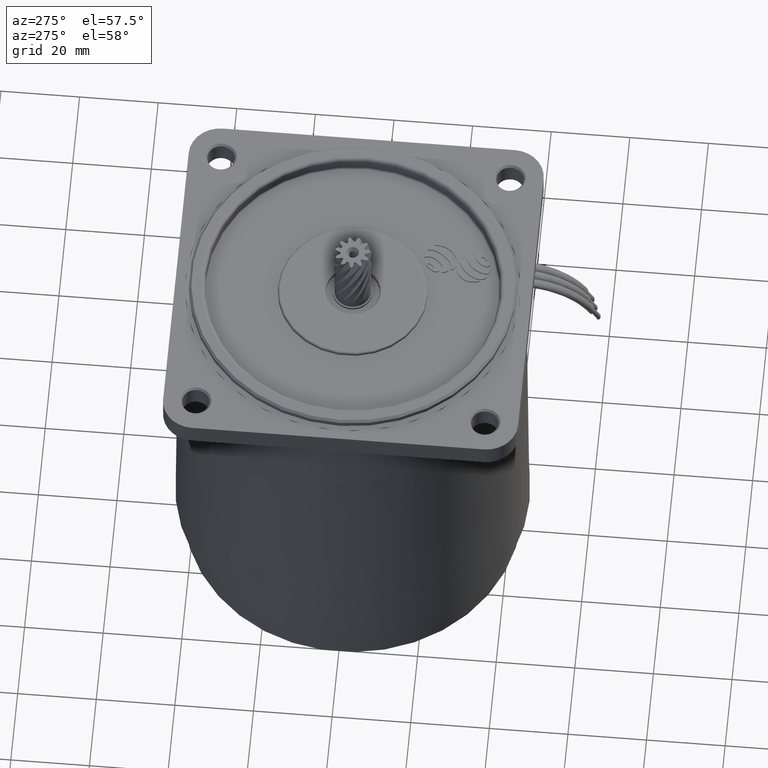
[diagram: clean part render]
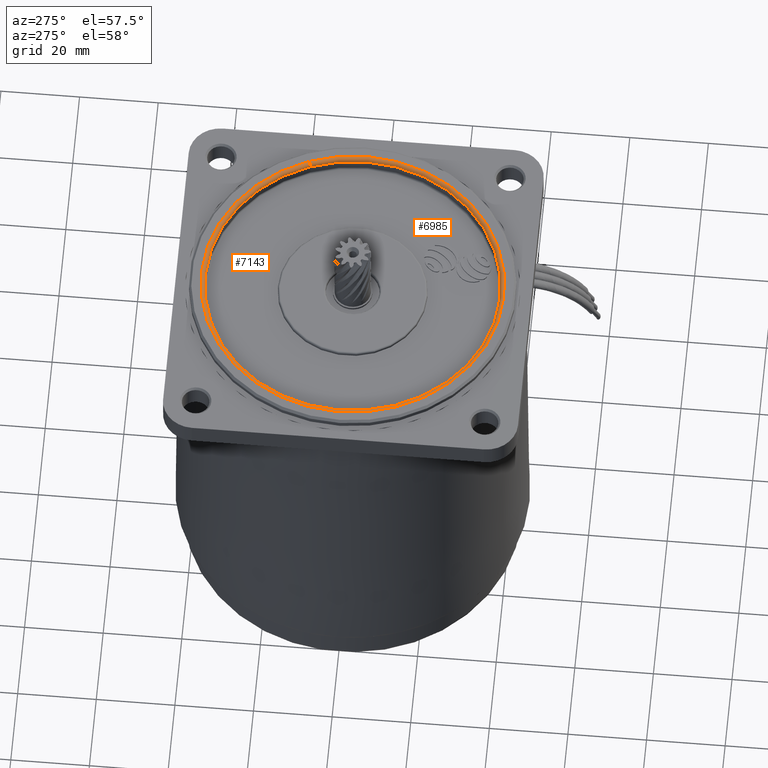
[diagram: same view with one multi-face feature highlighted, each face labeled with its STEP entity id]
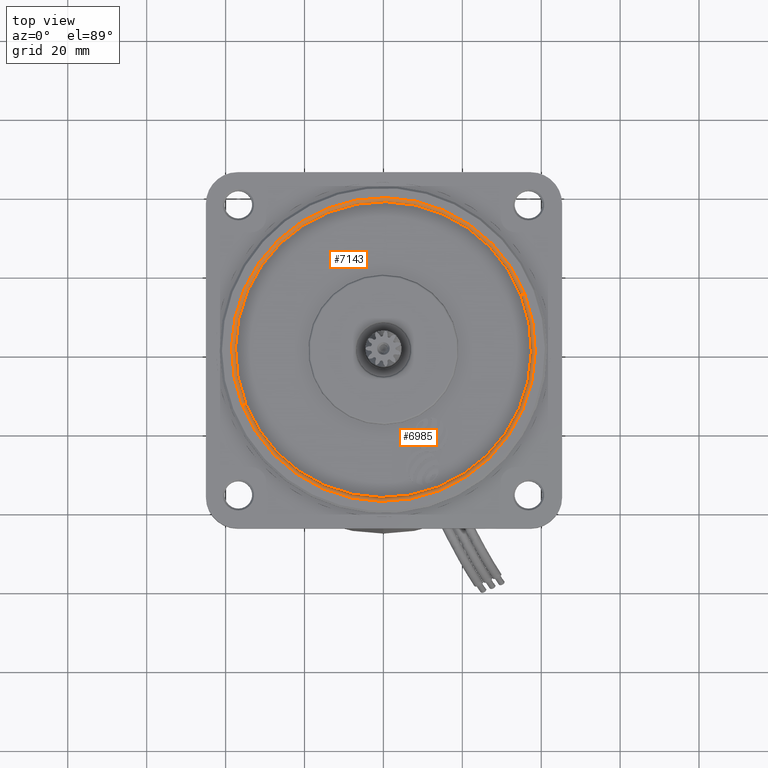
[diagram: same view with one multi-face feature highlighted, each face labeled with its STEP entity id]
A machine part, auxiliary view. The highlighted faces form ONE feature: a constant-radius fillet chain: 2 tangent blend faces with common blend radius 1 mm. The faces share edges in the B-rep.
A second angle (top view) of the same feature is appended — it is thin or edge-on in the first view.
Their STEP definitions:
[1] entity #7143 (Torus):
#2369 = CARTESIAN_POINT ( 'NONE',  ( 38.50000000000000000, 0.0000000000000000000, -24.50000000000000000 ) ) ;
#2383 = CARTESIAN_POINT ( 'NONE',  ( -38.50000000000000000, 4.714890176717309500E-015, -23.50000000000000000 ) ) ;
#2384 = CARTESIAN_POINT ( 'NONE',  ( -38.50000000000000000, 4.714890176717308700E-015, -24.50000000000000000 ) ) ;
#2387 = CIRCLE ( 'NONE', #2430, 1.000000000000000900 ) ;
#2400 = CARTESIAN_POINT ( 'NONE',  ( 0.0000000000000000000, 0.0000000000000000000, -23.50000000000000000 ) ) ;
#2403 = DIRECTION ( 'NONE',  ( 0.0000000000000000000, 0.0000000000000000000, -1.000000000000000000 ) ) ;
#2410 = DIRECTION ( 'NONE',  ( 0.0000000000000000000, 0.0000000000000000000, -1.000000000000000000 ) ) ;
#2411 = DIRECTION ( 'NONE',  ( 0.0000000000000000000, -1.000000000000000000, 0.0000000000000000000 ) ) ;
#2412 = AXIS2_PLACEMENT_3D ( 'NONE', #2417, #2411, #2410 ) ;
#2413 = AXIS2_PLACEMENT_3D ( 'NONE', #2400, #2403, #2464 ) ;
#2414 = CIRCLE ( 'NONE', #2413, 37.50000000000000000 ) ;
#2417 = CARTESIAN_POINT ( 'NONE',  ( 38.50000000000000000, 0.0000000000000000000, -23.50000000000000000 ) ) ;
#2420 = CIRCLE ( 'NONE', #2412, 1.000000000000000900 ) ;
#2428 = DIRECTION ( 'NONE',  ( -1.000000000000000000, 1.224646799147349500E-016, 0.0000000000000000000 ) ) ;
#2429 = DIRECTION ( 'NONE',  ( 1.224646799147353200E-016, 1.000000000000000000, 0.0000000000000000000 ) ) ;
#2430 = AXIS2_PLACEMENT_3D ( 'NONE', #2383, #2429, #2428 ) ;
#2464 = DIRECTION ( 'NONE',  ( 1.000000000000000000, 0.0000000000000000000, 0.0000000000000000000 ) ) ;
#2484 = CARTESIAN_POINT ( 'NONE',  ( 37.50000000000000000, 0.0000000000000000000, -23.50000000000000000 ) ) ;
#2495 = CIRCLE ( 'NONE', #2517, 38.50000000000000000 ) ;
#2496 = DIRECTION ( 'NONE',  ( 1.000000000000000000, 0.0000000000000000000, 0.0000000000000000000 ) ) ;
#2497 = DIRECTION ( 'NONE',  ( -0.0000000000000000000, -0.0000000000000000000, 1.000000000000000000 ) ) ;
#2502 = CARTESIAN_POINT ( 'NONE',  ( 0.0000000000000000000, 0.0000000000000000000, -23.50000000000000000 ) ) ;
#2503 = FACE_OUTER_BOUND ( 'NONE', #7030, .T. ) ;
#2517 = AXIS2_PLACEMENT_3D ( 'NONE', #2565, #2564, #2563 ) ;
#2518 = AXIS2_PLACEMENT_3D ( 'NONE', #2502, #2497, #2496 ) ;
#2521 = TOROIDAL_SURFACE ( 'NONE', #2518, 38.50000000000000000, 1.000000000000000000 ) ;
#2535 = CARTESIAN_POINT ( 'NONE',  ( -37.50000000000000000, 4.592425496802574400E-015, -23.50000000000000000 ) ) ;
#2563 = DIRECTION ( 'NONE',  ( 1.000000000000000000, 0.0000000000000000000, 0.0000000000000000000 ) ) ;
#2564 = DIRECTION ( 'NONE',  ( -0.0000000000000000000, -0.0000000000000000000, 1.000000000000000000 ) ) ;
#2565 = CARTESIAN_POINT ( 'NONE',  ( 0.0000000000000000000, 0.0000000000000000000, -24.50000000000000000 ) ) ;
#6953 = ORIENTED_EDGE ( 'NONE', *, *, #7015, .T. ) ;
#6960 = VERTEX_POINT ( 'NONE', #2369 ) ;
#7013 = ORIENTED_EDGE ( 'NONE', *, *, #7050, .F. ) ;
#7015 = EDGE_CURVE ( 'NONE', #7181, #7016, #2387, .T. ) ;
#7016 = VERTEX_POINT ( 'NONE', #2384 ) ;
#7020 = ORIENTED_EDGE ( 'NONE', *, *, #7145, .F. ) ;
#7030 = EDGE_LOOP ( 'NONE', ( #7013, #6953, #7020, #7133 ) ) ;
#7036 = EDGE_CURVE ( 'NONE', #7129, #6960, #2420, .T. ) ;
#7050 = EDGE_CURVE ( 'NONE', #7181, #7129, #2414, .T. ) ;
#7129 = VERTEX_POINT ( 'NONE', #2484 ) ;
#7133 = ORIENTED_EDGE ( 'NONE', *, *, #7036, .F. ) ;
#7143 = ADVANCED_FACE ( 'NONE', ( #2503 ), #2521, .T. ) ;
#7145 = EDGE_CURVE ( 'NONE', #6960, #7016, #2495, .T. ) ;
#7181 = VERTEX_POINT ( 'NONE', #2535 ) ;
[2] entity #6985 (Torus):
#1050 = DIRECTION ( 'NONE',  ( 0.0000000000000000000, 0.0000000000000000000, -1.000000000000000000 ) ) ;
#1051 = AXIS2_PLACEMENT_3D ( 'NONE', #1100, #1050, #1091 ) ;
#1091 = DIRECTION ( 'NONE',  ( 1.000000000000000000, 0.0000000000000000000, 0.0000000000000000000 ) ) ;
#1100 = CARTESIAN_POINT ( 'NONE',  ( 0.0000000000000000000, 0.0000000000000000000, -23.50000000000000000 ) ) ;
#1101 = CIRCLE ( 'NONE', #1051, 37.50000000000000000 ) ;
#2136 = CARTESIAN_POINT ( 'NONE',  ( 0.0000000000000000000, 0.0000000000000000000, -24.50000000000000000 ) ) ;
#2151 = CIRCLE ( 'NONE', #2177, 38.50000000000000000 ) ;
#2173 = DIRECTION ( 'NONE',  ( 1.000000000000000000, 0.0000000000000000000, 0.0000000000000000000 ) ) ;
#2174 = DIRECTION ( 'NONE',  ( -0.0000000000000000000, -0.0000000000000000000, 1.000000000000000000 ) ) ;
#2177 = AXIS2_PLACEMENT_3D ( 'NONE', #2136, #2174, #2173 ) ;
#2341 = AXIS2_PLACEMENT_3D ( 'NONE', #2351, #2354, #2393 ) ;
#2351 = CARTESIAN_POINT ( 'NONE',  ( 0.0000000000000000000, 0.0000000000000000000, -23.50000000000000000 ) ) ;
#2354 = DIRECTION ( 'NONE',  ( -0.0000000000000000000, -0.0000000000000000000, 1.000000000000000000 ) ) ;
#2363 = TOROIDAL_SURFACE ( 'NONE', #2341, 38.50000000000000000, 1.000000000000000000 ) ;
#2369 = CARTESIAN_POINT ( 'NONE',  ( 38.50000000000000000, 0.0000000000000000000, -24.50000000000000000 ) ) ;
#2383 = CARTESIAN_POINT ( 'NONE',  ( -38.50000000000000000, 4.714890176717309500E-015, -23.50000000000000000 ) ) ;
#2384 = CARTESIAN_POINT ( 'NONE',  ( -38.50000000000000000, 4.714890176717308700E-015, -24.50000000000000000 ) ) ;
#2387 = CIRCLE ( 'NONE', #2430, 1.000000000000000900 ) ;
#2393 = DIRECTION ( 'NONE',  ( 1.000000000000000000, 0.0000000000000000000, 0.0000000000000000000 ) ) ;
#2398 = FACE_OUTER_BOUND ( 'NONE', #6974, .T. ) ;
#2410 = DIRECTION ( 'NONE',  ( 0.0000000000000000000, 0.0000000000000000000, -1.000000000000000000 ) ) ;
#2411 = DIRECTION ( 'NONE',  ( 0.0000000000000000000, -1.000000000000000000, 0.0000000000000000000 ) ) ;
#2412 = AXIS2_PLACEMENT_3D ( 'NONE', #2417, #2411, #2410 ) ;
#2417 = CARTESIAN_POINT ( 'NONE',  ( 38.50000000000000000, 0.0000000000000000000, -23.50000000000000000 ) ) ;
#2420 = CIRCLE ( 'NONE', #2412, 1.000000000000000900 ) ;
#2428 = DIRECTION ( 'NONE',  ( -1.000000000000000000, 1.224646799147349500E-016, 0.0000000000000000000 ) ) ;
#2429 = DIRECTION ( 'NONE',  ( 1.224646799147353200E-016, 1.000000000000000000, 0.0000000000000000000 ) ) ;
#2430 = AXIS2_PLACEMENT_3D ( 'NONE', #2383, #2429, #2428 ) ;
#2484 = CARTESIAN_POINT ( 'NONE',  ( 37.50000000000000000, 0.0000000000000000000, -23.50000000000000000 ) ) ;
#2535 = CARTESIAN_POINT ( 'NONE',  ( -37.50000000000000000, 4.592425496802574400E-015, -23.50000000000000000 ) ) ;
#5731 = ORIENTED_EDGE ( 'NONE', *, *, #7036, .T. ) ;
#5804 = EDGE_CURVE ( 'NONE', #7129, #7181, #1101, .T. ) ;
#6069 = ORIENTED_EDGE ( 'NONE', *, *, #7015, .F. ) ;
#6294 = ORIENTED_EDGE ( 'NONE', *, *, #5804, .F. ) ;
#6812 = EDGE_CURVE ( 'NONE', #7016, #6960, #2151, .T. ) ;
#6960 = VERTEX_POINT ( 'NONE', #2369 ) ;
#6974 = EDGE_LOOP ( 'NONE', ( #6069, #6294, #5731, #10383 ) ) ;
#6985 = ADVANCED_FACE ( 'NONE', ( #2398 ), #2363, .T. ) ;
#7015 = EDGE_CURVE ( 'NONE', #7181, #7016, #2387, .T. ) ;
#7016 = VERTEX_POINT ( 'NONE', #2384 ) ;
#7036 = EDGE_CURVE ( 'NONE', #7129, #6960, #2420, .T. ) ;
#7129 = VERTEX_POINT ( 'NONE', #2484 ) ;
#7181 = VERTEX_POINT ( 'NONE', #2535 ) ;
#10383 = ORIENTED_EDGE ( 'NONE', *, *, #6812, .F. ) ;